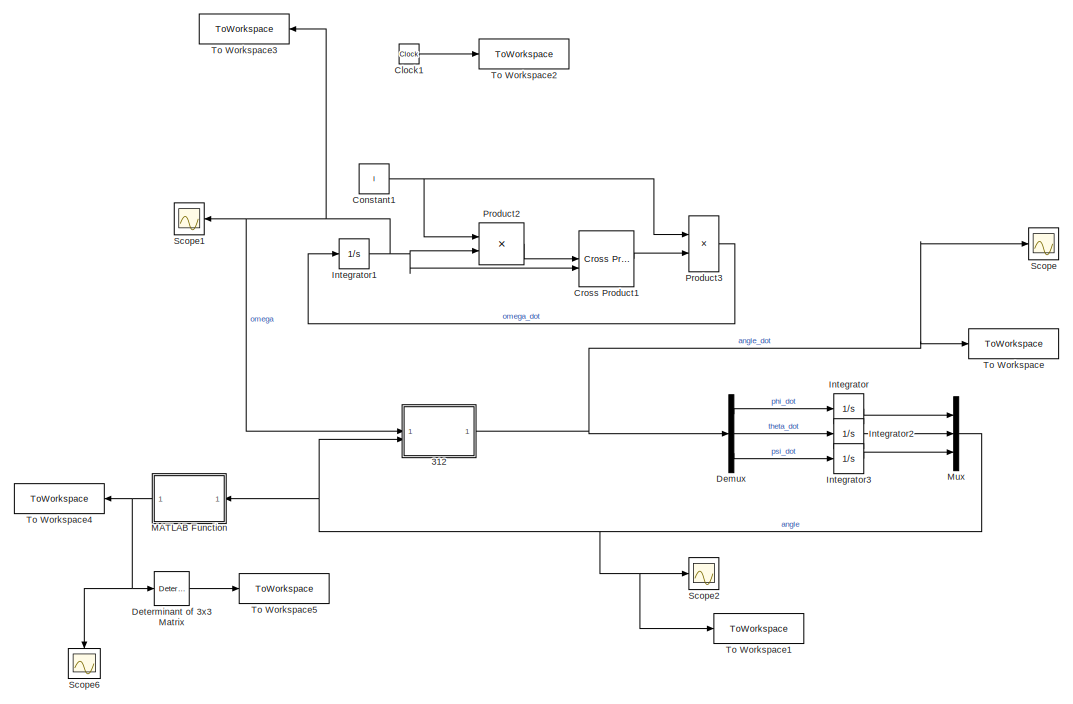
[diagram: root canvas - part 1/2, full width, top band]
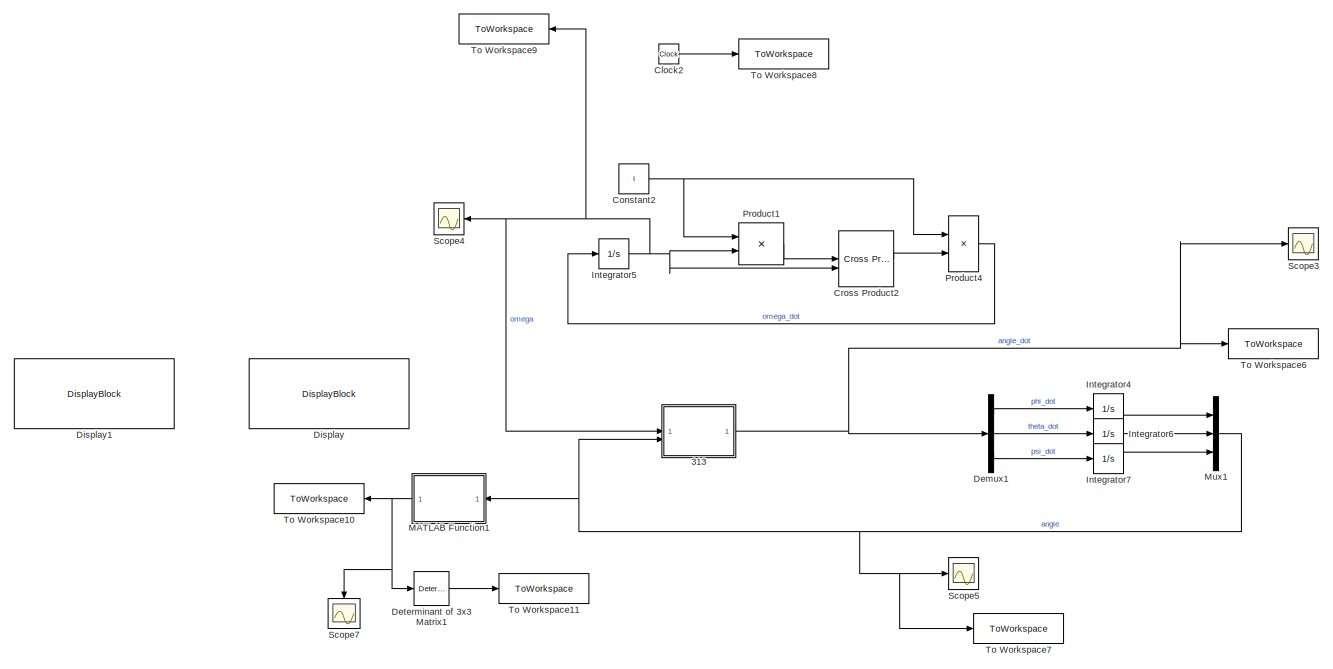
[diagram: root canvas - part 2/2, full width, bottom band]
MODEL slx_48726a6af887
KIND model
CONFIG AbsTol = auto
CONFIG EnableMultiTasking = off
CONFIG FixedStep = 0.1
CONFIG MaxStep = auto
CONFIG MinStep = auto
CONFIG RelTol = 1e-3
CONFIG SampleTimeConstraint = Unconstrained
CONFIG SolverName = ode4
CONFIG StartTime = 0.0
CONFIG StopTime = 10
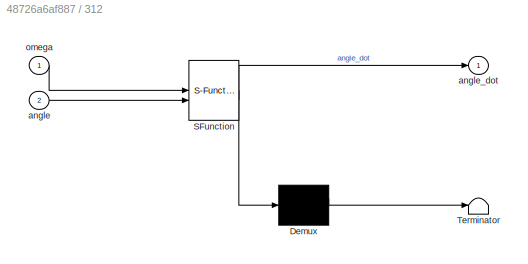
BLOCK [SubSystem] 312
  ErrorFcn = Stateflow.Translate.translate
  LibrarySourceBlock = simulink/User-Defined\nFunctions/MATLAB Function
  PermitHierarchicalResolution = ExplicitOnly
  SFBlockType = MATLAB Function
  TreatAsAtomicUnit = on
BLOCK [Demux] 312/ Demux 
  Outputs = 1
BLOCK [S-Function] 312/ SFunction 
  EnableBusSupport = on
  FunctionName = sf_sfun
  PortCounts = [2 2]
  SFcnIsStateOwnerBlock = off
  SFunctionDeploymentMode = off
  Tag = Stateflow S-Function 2
BLOCK [Terminator] 312/ Terminator 
BLOCK [Inport] 312/angle
  Port = 2
BLOCK [Outport] 312/angle_dot
BLOCK [Inport] 312/omega
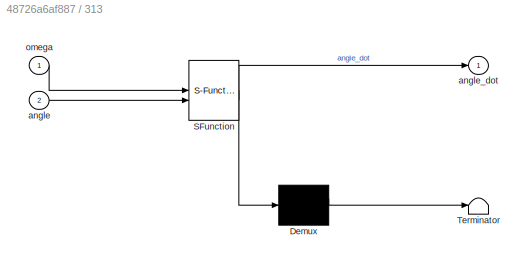
BLOCK [SubSystem] 313
  ErrorFcn = Stateflow.Translate.translate
  LibrarySourceBlock = simulink/User-Defined\nFunctions/MATLAB Function
  PermitHierarchicalResolution = ExplicitOnly
  SFBlockType = MATLAB Function
  TreatAsAtomicUnit = on
BLOCK [Demux] 313/ Demux 
  Outputs = 1
BLOCK [S-Function] 313/ SFunction 
  EnableBusSupport = on
  FunctionName = sf_sfun
  PortCounts = [2 2]
  SFcnIsStateOwnerBlock = off
  SFunctionDeploymentMode = off
  Tag = Stateflow S-Function 4
BLOCK [Terminator] 313/ Terminator 
BLOCK [Inport] 313/angle
  Port = 2
BLOCK [Outport] 313/angle_dot
BLOCK [Inport] 313/omega
BLOCK [Clock] Clock1
BLOCK [Clock] Clock2
BLOCK [Constant] Constant1
  Value = I
BLOCK [Constant] Constant2
  Value = I
BLOCK [Reference] Cross Product1  REF=matrix_library/Cross Product
  LibrarySourceBlock = simulink/Matrix\nOperations/Cross Product
  SourceBlock = matrix_library/Cross Product
  SourceType = CrossProduct
BLOCK [Reference] Cross Product2  REF=matrix_library/Cross Product
  LibrarySourceBlock = simulink/Matrix\nOperations/Cross Product
  SourceBlock = matrix_library/Cross Product
  SourceType = CrossProduct
BLOCK [Demux] Demux
  Outputs = 3
BLOCK [Demux] Demux1
  Outputs = 3
BLOCK [Reference] Determinant of 3x3 Matrix  REF=sharedutil/Determinant of
3x3 Matrix
  LibrarySourceBlock = aerolibutil/Determinant of\n3x3 Matrix
  SourceBlock = sharedutil/Determinant of\n3x3 Matrix
  SourceType = Determinant of 3x3 Matrix
BLOCK [Reference] Determinant of 3x3 Matrix1  REF=sharedutil/Determinant of
3x3 Matrix
  LibrarySourceBlock = aerolibutil/Determinant of\n3x3 Matrix
  SourceBlock = sharedutil/Determinant of\n3x3 Matrix
  SourceType = Determinant of 3x3 Matrix
BLOCK [DisplayBlock] Display
  LabelPosition = Hide
  Transparency = 1
BLOCK [DisplayBlock] Display1
  LabelPosition = Hide
  Transparency = 1
BLOCK [Integrator] Integrator
  InitialCondition = phi0
  WrapState = on
  WrappedStateLowerValue = 0
  WrappedStateUpperValue = 2*pi
BLOCK [Integrator] Integrator1
  InitialCondition = om_0
BLOCK [Integrator] Integrator2
  InitialCondition = theta0
  WrapState = on
BLOCK [Integrator] Integrator3
  InitialCondition = psi0
  WrapState = on
  WrappedStateLowerValue = 0
  WrappedStateUpperValue = 2*pi
BLOCK [Integrator] Integrator4
  InitialCondition = phi0
  WrapState = on
  WrappedStateLowerValue = 0
  WrappedStateUpperValue = 2*pi
BLOCK [Integrator] Integrator5
  InitialCondition = om_0
BLOCK [Integrator] Integrator6
  InitialCondition = theta0
  WrapState = on
BLOCK [Integrator] Integrator7
  InitialCondition = psi0
  WrapState = on
  WrappedStateLowerValue = 0
  WrappedStateUpperValue = 2*pi
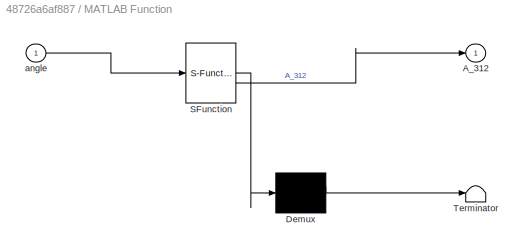
BLOCK [SubSystem] MATLAB Function
  ErrorFcn = Stateflow.Translate.translate
  LibrarySourceBlock = simulink/User-Defined\nFunctions/MATLAB Function
  NameLocation = top
  PermitHierarchicalResolution = ExplicitOnly
  SFBlockType = MATLAB Function
  TreatAsAtomicUnit = on
BLOCK [Demux] MATLAB Function/ Demux 
  Outputs = 1
BLOCK [S-Function] MATLAB Function/ SFunction 
  EnableBusSupport = on
  FunctionName = sf_sfun
  PortCounts = [1 2]
  SFcnIsStateOwnerBlock = off
  SFunctionDeploymentMode = off
  Tag = Stateflow S-Function 1
BLOCK [Terminator] MATLAB Function/ Terminator 
BLOCK [Outport] MATLAB Function/A_312
BLOCK [Inport] MATLAB Function/angle
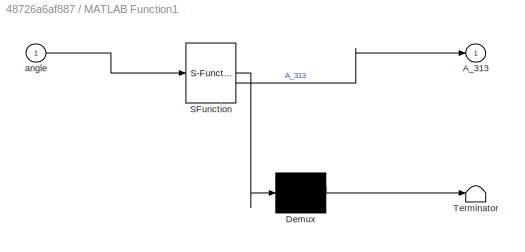
BLOCK [SubSystem] MATLAB Function1
  ErrorFcn = Stateflow.Translate.translate
  LibrarySourceBlock = simulink/User-Defined\nFunctions/MATLAB Function
  NameLocation = top
  PermitHierarchicalResolution = ExplicitOnly
  SFBlockType = MATLAB Function
  TreatAsAtomicUnit = on
BLOCK [Demux] MATLAB Function1/ Demux 
  Outputs = 1
BLOCK [S-Function] MATLAB Function1/ SFunction 
  EnableBusSupport = on
  FunctionName = sf_sfun
  PortCounts = [1 2]
  SFcnIsStateOwnerBlock = off
  SFunctionDeploymentMode = off
  Tag = Stateflow S-Function 3
BLOCK [Terminator] MATLAB Function1/ Terminator 
BLOCK [Outport] MATLAB Function1/A_313
BLOCK [Inport] MATLAB Function1/angle
BLOCK [Mux] Mux
  DisplayOption = bar
  Inputs = 3
BLOCK [Mux] Mux1
  DisplayOption = bar
  Inputs = 3
BLOCK [Product] Product1
  Multiplication = Matrix(*)
BLOCK [Product] Product2
  Multiplication = Matrix(*)
BLOCK [Product] Product3
  Inputs = /*
  Multiplication = Matrix(*)
BLOCK [Product] Product4
  Inputs = /*
  Multiplication = Matrix(*)
BLOCK [Scope] Scope
  Floating = off
  NumInputPorts = 1
  ScopeSpecificationString = Simulink.scopes.TimeScopeBlockCfg('CurrentConfiguration', extmgr.ConfigurationSet(extmgr.Configuration('Core','General UI',true),extmgr.Configuration('Core','Source UI',true),extmgr.Configuration('Sources','WiredSimulink',true),extmgr.Configuration('Visuals','Time Domain',true,'SerializedDisplays',{struct('MinYLimReal','-10.23503','MaxYLimReal','10.45686','YLabelReal','','MinYLimMag','0.00000','Ma...<+1365ch>
BLOCK [Scope] Scope1
  Floating = off
  NameLocation = top
  NumInputPorts = 1
  ScopeSpecificationString = Simulink.scopes.TimeScopeBlockCfg('CurrentConfiguration', extmgr.ConfigurationSet(extmgr.Configuration('Core','General UI',true),extmgr.Configuration('Core','Source UI',true),extmgr.Configuration('Sources','WiredSimulink',true,'DataLoggingVariableName','ScopeData1'),extmgr.Configuration('Visuals','Time Domain',true,'SerializedDisplays',{struct('MinYLimReal','-1.00032','MaxYLimReal','0.89744','YLab...<+1386ch>
BLOCK [Scope] Scope2
  Floating = off
  NumInputPorts = 1
  ScopeSpecificationString = Simulink.scopes.TimeScopeBlockCfg('CurrentConfiguration', extmgr.ConfigurationSet(extmgr.Configuration('Core','General UI',true),extmgr.Configuration('Core','Source UI',true),extmgr.Configuration('Sources','WiredSimulink',true,'DataLoggingVariableName','ScopeData2'),extmgr.Configuration('Visuals','Time Domain',true,'SerializedDisplays',{struct('MinYLimReal','-9.09976','MaxYLimReal','9.76125','YLab...<+1484ch>
BLOCK [Scope] Scope3
  Floating = off
  NumInputPorts = 1
  ScopeSpecificationString = Simulink.scopes.TimeScopeBlockCfg('CurrentConfiguration', extmgr.ConfigurationSet(extmgr.Configuration('Core','General UI',true),extmgr.Configuration('Core','Source UI',true),extmgr.Configuration('Sources','WiredSimulink',true,'DataLoggingVariableName','ScopeData1'),extmgr.Configuration('Visuals','Time Domain',true,'SerializedDisplays',{struct('MinYLimReal','-0.52462','MaxYLimReal','1.13607','YLab...<+1398ch>
BLOCK [Scope] Scope4
  Floating = off
  NameLocation = top
  NumInputPorts = 1
  ScopeSpecificationString = Simulink.scopes.TimeScopeBlockCfg('CurrentConfiguration', extmgr.ConfigurationSet(extmgr.Configuration('Core','General UI',true),extmgr.Configuration('Core','Source UI',true),extmgr.Configuration('Sources','WiredSimulink',true,'DataLoggingVariableName','ScopeData2'),extmgr.Configuration('Visuals','Time Domain',true,'SerializedDisplays',{struct('MinYLimReal','-1.00032','MaxYLimReal','0.89744','YLab...<+1386ch>
BLOCK [Scope] Scope5
  Floating = off
  NumInputPorts = 1
  ScopeSpecificationString = Simulink.scopes.TimeScopeBlockCfg('CurrentConfiguration', extmgr.ConfigurationSet(extmgr.Configuration('Core','General UI',true),extmgr.Configuration('Core','Source UI',true),extmgr.Configuration('Sources','WiredSimulink',true,'DataLoggingVariableName','ScopeData3'),extmgr.Configuration('Visuals','Time Domain',true,'SerializedDisplays',{struct('MinYLimReal','-0.76226','MaxYLimReal','6.98325','YLab...<+1458ch>
BLOCK [Scope] Scope6
  Floating = off
  NameLocation = left
  NumInputPorts = 1
  ScopeSpecificationString = Simulink.scopes.TimeScopeBlockCfg('CurrentConfiguration', extmgr.ConfigurationSet(extmgr.Configuration('Core','General UI',true),extmgr.Configuration('Core','Source UI',true),extmgr.Configuration('Sources','WiredSimulink',true,'DataLoggingVariableName','ScopeData1'),extmgr.Configuration('Visuals','Time Domain',true,'SerializedDisplays',{struct('MinYLimReal','-1.24911','MaxYLimReal','1.2498','YLabe...<+1571ch>
BLOCK [Scope] Scope7
  Floating = off
  NameLocation = left
  NumInputPorts = 1
  ScopeSpecificationString = Simulink.scopes.TimeScopeBlockCfg('CurrentConfiguration', extmgr.ConfigurationSet(extmgr.Configuration('Core','General UI',true),extmgr.Configuration('Core','Source UI',true),extmgr.Configuration('Sources','WiredSimulink',true,'DataLoggingVariableName','ScopeData2'),extmgr.Configuration('Visuals','Time Domain',true,'SerializedDisplays',{struct('MinYLimReal','-1.24929','MaxYLimReal','1.24975','YLab...<+1598ch>
BLOCK [ToWorkspace] To Workspace
  FixptAsFi = on
  MaxDataPoints = inf
  SampleTime = -1
  VariableName = angle_dot312
BLOCK [ToWorkspace] To Workspace1
  FixptAsFi = on
  MaxDataPoints = inf
  SampleTime = -1
  VariableName = angle312
BLOCK [ToWorkspace] To Workspace10
  FixptAsFi = on
  MaxDataPoints = inf
  NameLocation = top
  SampleTime = -1
  VariableName = A313
BLOCK [ToWorkspace] To Workspace11
  FixptAsFi = on
  MaxDataPoints = inf
  SampleTime = -1
  VariableName = detA313
BLOCK [ToWorkspace] To Workspace2
  FixptAsFi = on
  MaxDataPoints = inf
  SampleTime = -1
  SaveFormat = Timeseries
  VariableName = time1
BLOCK [ToWorkspace] To Workspace3
  FixptAsFi = on
  MaxDataPoints = inf
  NameLocation = top
  SampleTime = -1
  SaveFormat = Timeseries
  VariableName = omega
BLOCK [ToWorkspace] To Workspace4
  FixptAsFi = on
  MaxDataPoints = inf
  NameLocation = top
  SampleTime = -1
  VariableName = A312
BLOCK [ToWorkspace] To Workspace5
  FixptAsFi = on
  MaxDataPoints = inf
  SampleTime = -1
  VariableName = detA312
BLOCK [ToWorkspace] To Workspace6
  FixptAsFi = on
  MaxDataPoints = inf
  SampleTime = -1
  VariableName = angle_dot313
BLOCK [ToWorkspace] To Workspace7
  FixptAsFi = on
  MaxDataPoints = inf
  SampleTime = -1
  VariableName = angle313
BLOCK [ToWorkspace] To Workspace8
  FixptAsFi = on
  MaxDataPoints = inf
  SampleTime = -1
  SaveFormat = Timeseries
  VariableName = time
BLOCK [ToWorkspace] To Workspace9
  FixptAsFi = on
  MaxDataPoints = inf
  NameLocation = top
  SampleTime = -1
  SaveFormat = Timeseries
  VariableName = omega1
NET 312:1 -> Demux:1, Scope:1, To Workspace:1
NET 313:1 -> Demux1:1, Scope3:1, To Workspace6:1
LINE Clock1:1 -> To Workspace2:1
LINE Clock2:1 -> To Workspace8:1
NET Constant1:1 -> Product2:1, Product3:1
NET Constant2:1 -> Product1:1, Product4:1
LINE Cross Product1:1 -> Product3:2
LINE Cross Product2:1 -> Product4:2
LINE Demux1:1 -> Integrator4:1
LINE Demux1:2 -> Integrator6:1
LINE Demux1:3 -> Integrator7:1
LINE Demux:1 -> Integrator:1
LINE Demux:2 -> Integrator2:1
LINE Demux:3 -> Integrator3:1
LINE Determinant of 3x3 Matrix1:1 -> To Workspace11:1
LINE Determinant of 3x3 Matrix:1 -> To Workspace5:1
NET Integrator1:1 -> 312:1, Cross Product1:2, Product2:2, Scope1:1, To Workspace3:1
LINE Integrator2:1 -> Mux:2
LINE Integrator3:1 -> Mux:3
LINE Integrator4:1 -> Mux1:1
NET Integrator5:1 -> 313:1, Cross Product2:2, Product1:2, Scope4:1, To Workspace9:1
LINE Integrator6:1 -> Mux1:2
LINE Integrator7:1 -> Mux1:3
LINE Integrator:1 -> Mux:1
NET MATLAB Function1:1 -> Determinant of 3x3 Matrix1:1, Scope7:1, To Workspace10:1
NET MATLAB Function:1 -> Determinant of 3x3 Matrix:1, Scope6:1, To Workspace4:1
NET Mux1:1 -> 313:2, MATLAB Function1:1, Scope5:1, To Workspace7:1
NET Mux:1 -> 312:2, MATLAB Function:1, Scope2:1, To Workspace1:1
LINE Product1:1 -> Cross Product2:1
LINE Product2:1 -> Cross Product1:1
LINE Product3:1 -> Integrator1:1
LINE Product4:1 -> Integrator5:1
note: NET lines group one-source signal fan-out (src -> all destinations, sorted); 1:1 wires keep LINE
CHART MATLAB Function states=1 transitions=1
  STATE_LABEL 'eML_blk_kernel()'
  STATE_LABEL 'SCRIPT:\nfunction A_312 = fcn(angle)\n\nphi = angle(1);\ntheta = angle(2);\npsi = angle(3);\n\nA_312 = [cos(psi)*cos(phi)-sin(psi)*sin(phi)*sin(theta), cos(psi)*sin(phi)+sin(psi)*cos(phi)*sin(theta), -sin(psi)*cos(theta);\n    -sin(phi)*cos(theta), cos(phi)*cos(theta), sin(theta);\n    sin(psi)*cos(phi)+cos(psi)*sin(phi)*sin(theta), sin(psi)*sin(phi)-cos(psi)*cos(phi)*sin(theta), cos(theta)*cos(psi)];\n\nend...<+3ch>'
CHART 312 states=1 transitions=1
  STATE_LABEL 'eML_blk_kernel()'
  STATE_LABEL 'SCRIPT:\nfunction angle_dot  = fcn(omega, angle)\n\nom_x = omega(1);\nom_y = omega(2);\nom_z = omega(3);\n\nphi = angle(1);\ntheta = angle(2);\npsi = angle(3);\n\nphi_dot = (om_z*cos(psi) - om_x*sin(psi))/cos(theta);\ntheta_dot = om_x*cos(psi) + om_z*sin(psi);\npsi_dot = om_y - (om_z*cos(psi) - om_x*sin(psi))*sin(theta)/cos(theta);\n\nangle_dot = [phi_dot; theta_dot; psi_dot];\n\nend\n'
CHART MATLAB Function1 states=1 transitions=1
  STATE_LABEL 'eML_blk_kernel()'
  STATE_LABEL 'SCRIPT:\nfunction A_313 = fcn(angle)\n\nphi = angle(1);\ntheta = angle(2);\npsi = angle(3);\n\nA_313 = [cos(psi)*cos(phi)-sin(psi)*sin(phi)*cos(theta), cos(psi)*sin(phi)+sin(psi)*cos(phi)*cos(theta), sin(psi)*sin(theta);\n    -sin(psi)*cos(phi)-cos(psi)*sin(phi)*cos(theta), -sin(psi)*sin(phi)+cos(psi)*cos(phi)*cos(theta), cos(psi)*sin(theta);\n    sin(phi)*sin(theta), -cos(phi)*sin(theta), cos(theta)];\n\nen...<+4ch>'
CHART 313 states=1 transitions=1
  STATE_LABEL 'eML_blk_kernel()'
  STATE_LABEL 'SCRIPT:\nfunction angle_dot  = fcn(omega, angle)\n\nom_x = omega(1);\nom_y = omega(2);\nom_z = omega(3);\n\nphi = angle(1);\ntheta = angle(2);\npsi = angle(3);\n\nphi_dot = (om_x*sin(psi) + om_y*cos(psi))/sin(theta);\ntheta_dot = om_x*cos(psi) - om_y*sin(psi);\npsi_dot = om_z - (om_x*sin(psi) + om_y*cos(psi))*cos(theta)/sin(theta);\n\nangle_dot = [phi_dot; theta_dot; psi_dot];\n\nend\n'
CHART  states=0 transitions=0
CHART  states=0 transitions=0
CHART  states=0 transitions=0
CHART  states=0 transitions=0
